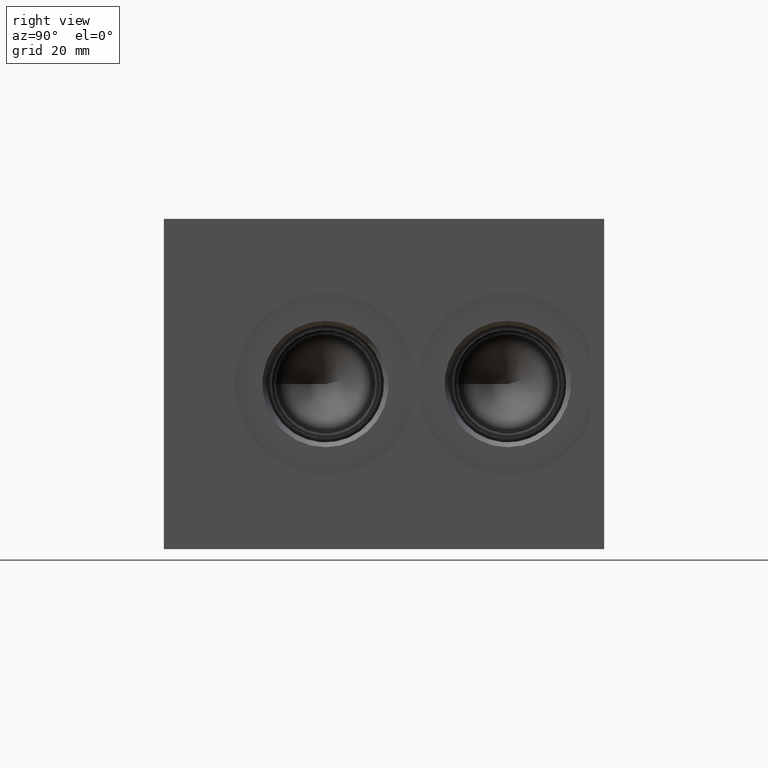
[diagram: clean part render]
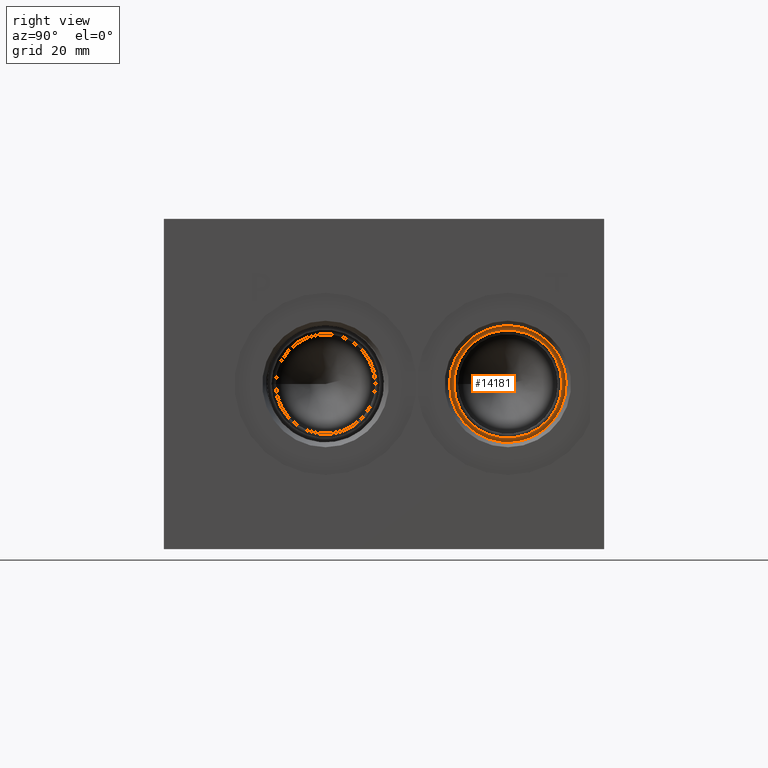
[diagram: same view with one face highlighted and labeled with its STEP entity id]
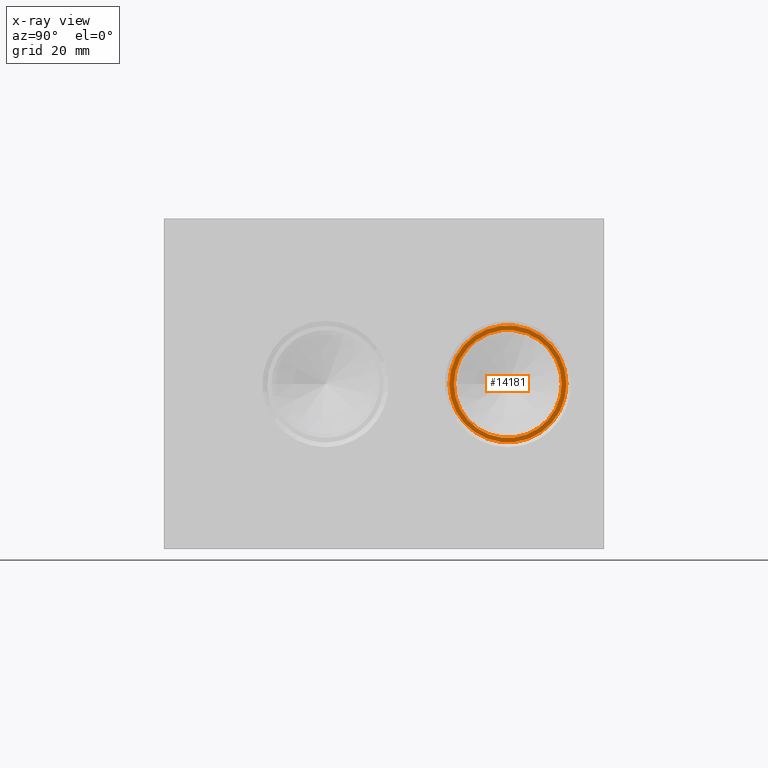
[diagram: x-ray of the same camera — body ghosted, the highlighted face saturated]
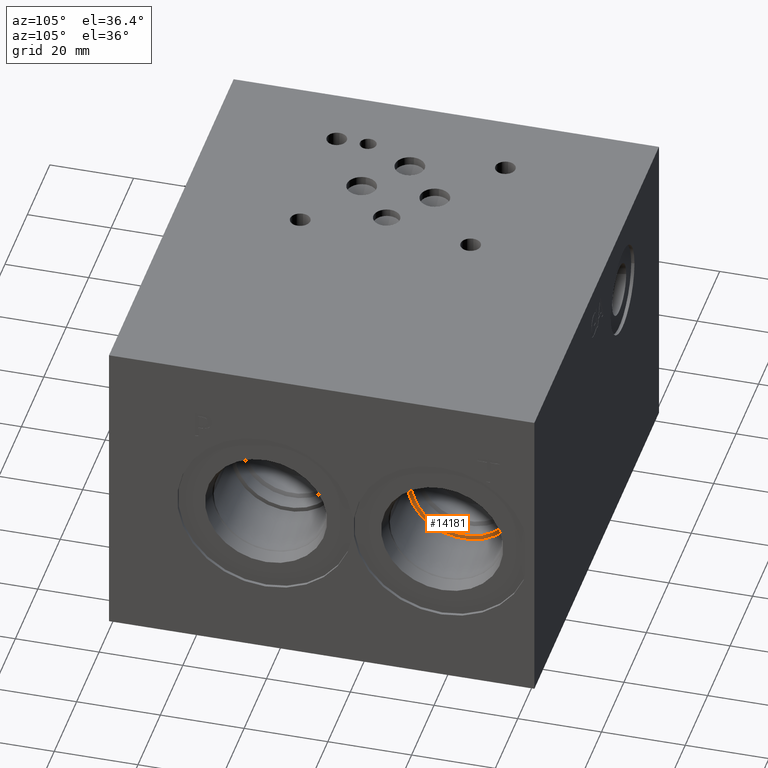
[diagram: same view with one face highlighted and labeled with its STEP entity id]
A machine part, right view. The second image highlights one B-rep face of the part: STEP entity #14181.
The next image is the same camera in x-ray: the body ghosted, the highlighted face saturated — about 0% of this face is hidden behind the body in this view.
A second angle (auxiliary view) of the same face is appended — the face is thin or edge-on in the first view.
In plain terms, the highlighted planar face has unit normal (1, 0, 0).
Its self-contained STEP definition (entity closure, byte-faithful):
#236=CIRCLE('',#14818,13.495);
#237=CIRCLE('',#14819,13.495);
#238=CIRCLE('',#14820,12.4587);
#489=FACE_BOUND('',#2344,.T.);
#892=PLANE('',#14817);
#1534=FACE_OUTER_BOUND('',#2343,.T.);
#2343=EDGE_LOOP('',(#12164,#12165));
#2344=EDGE_LOOP('',(#12166));
#6656=VERTEX_POINT('',#24242);
#6657=VERTEX_POINT('',#24243);
#6658=VERTEX_POINT('',#24246);
#8558=EDGE_CURVE('',#6656,#6657,#236,.T.);
#8559=EDGE_CURVE('',#6657,#6656,#237,.T.);
#8560=EDGE_CURVE('',#6658,#6658,#238,.T.);
#12164=ORIENTED_EDGE('',*,*,#8558,.T.);
#12165=ORIENTED_EDGE('',*,*,#8559,.T.);
#12166=ORIENTED_EDGE('',*,*,#8560,.F.);
#14181=ADVANCED_FACE('',(#1534,#489),#892,.T.);
#14817=AXIS2_PLACEMENT_3D('',#24241,#17308,#17309);
#14818=AXIS2_PLACEMENT_3D('',#24244,#17310,#17311);
#14819=AXIS2_PLACEMENT_3D('',#24245,#17312,#17313);
#14820=AXIS2_PLACEMENT_3D('',#24247,#17314,#17315);
#17308=DIRECTION('center_axis',(1.,0.,0.));
#17309=DIRECTION('ref_axis',(0.,1.,0.));
#17310=DIRECTION('center_axis',(1.,0.,0.));
#17311=DIRECTION('ref_axis',(0.,1.,0.));
#17312=DIRECTION('center_axis',(1.,0.,0.));
#17313=DIRECTION('ref_axis',(0.,1.,0.));
#17314=DIRECTION('center_axis',(1.,0.,0.));
#17315=DIRECTION('ref_axis',(0.,1.,0.));
#24241=CARTESIAN_POINT('Origin',(91.2876,79.375,38.1));
#24242=CARTESIAN_POINT('',(91.2876,92.87,38.1));
#24243=CARTESIAN_POINT('',(91.2876,65.88,38.1));
#24244=CARTESIAN_POINT('Origin',(91.2876,79.375,38.1));
#24245=CARTESIAN_POINT('Origin',(91.2876,79.375,38.1));
#24246=CARTESIAN_POINT('',(91.2876,66.9163,38.1));
#24247=CARTESIAN_POINT('Origin',(91.2876,79.375,38.1));